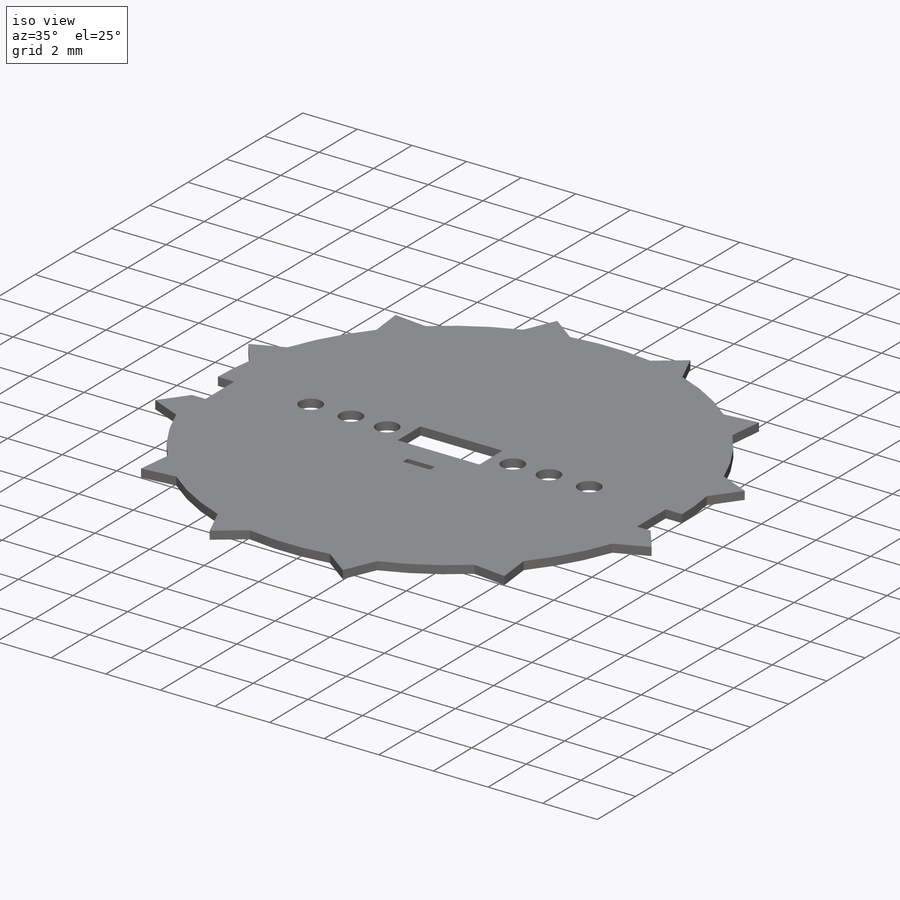
[diagram: iso view]
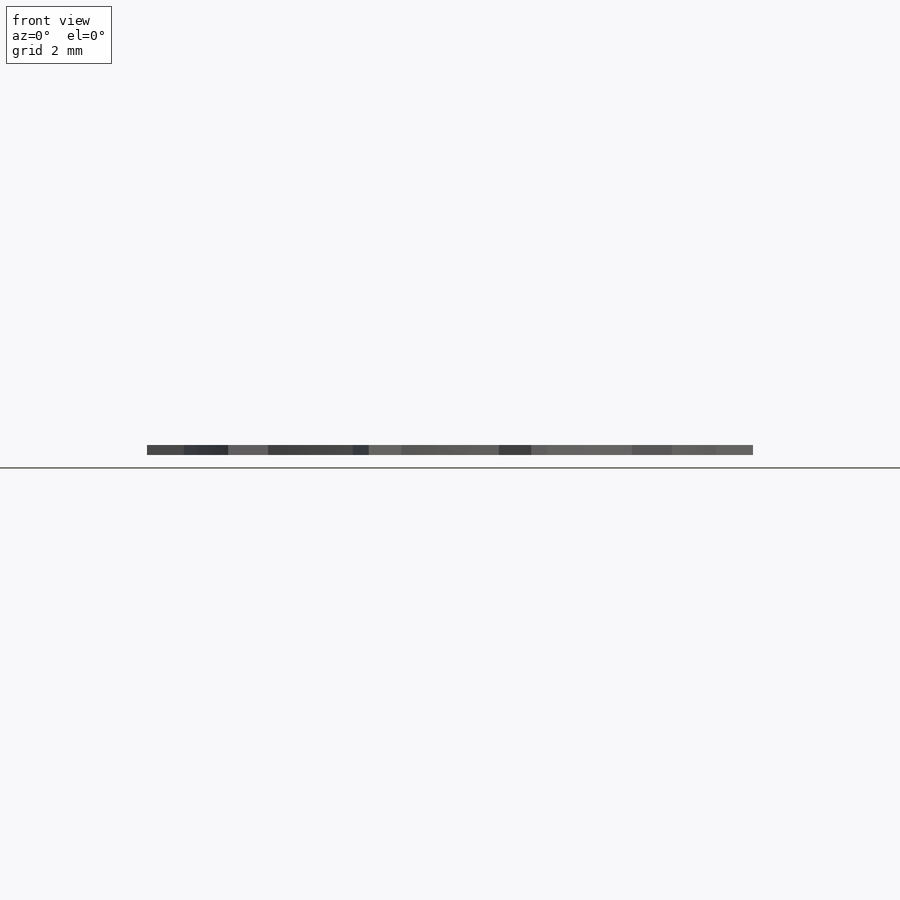
[diagram: front view]
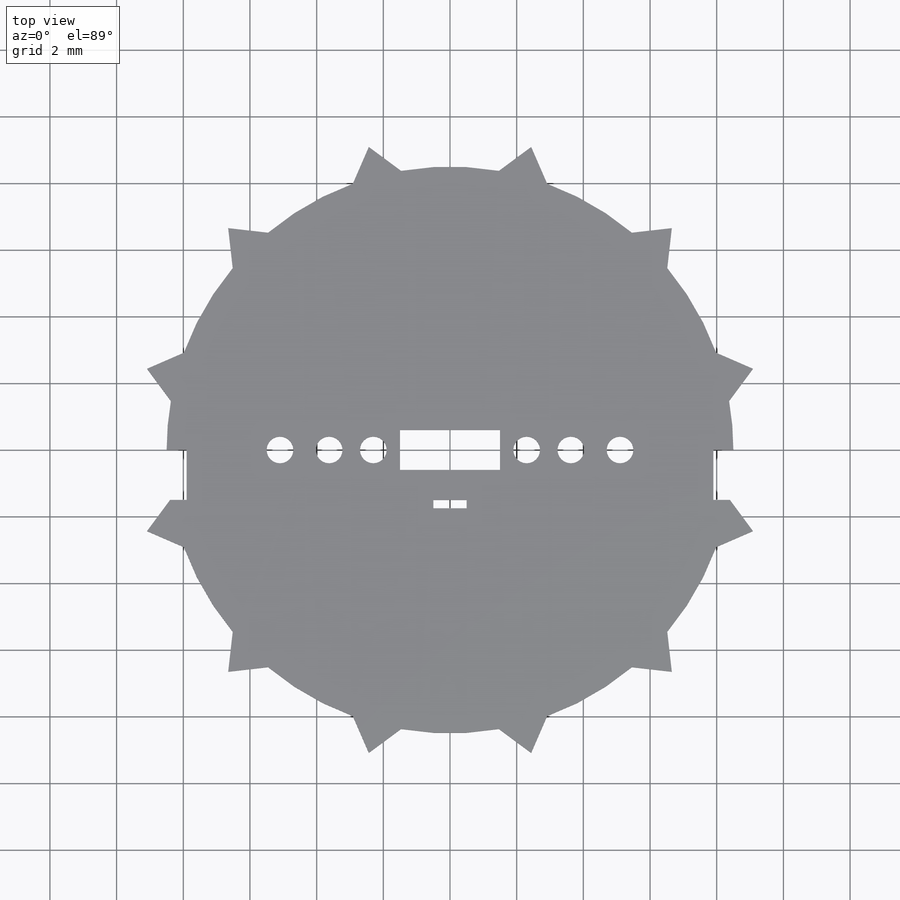
[diagram: top view]
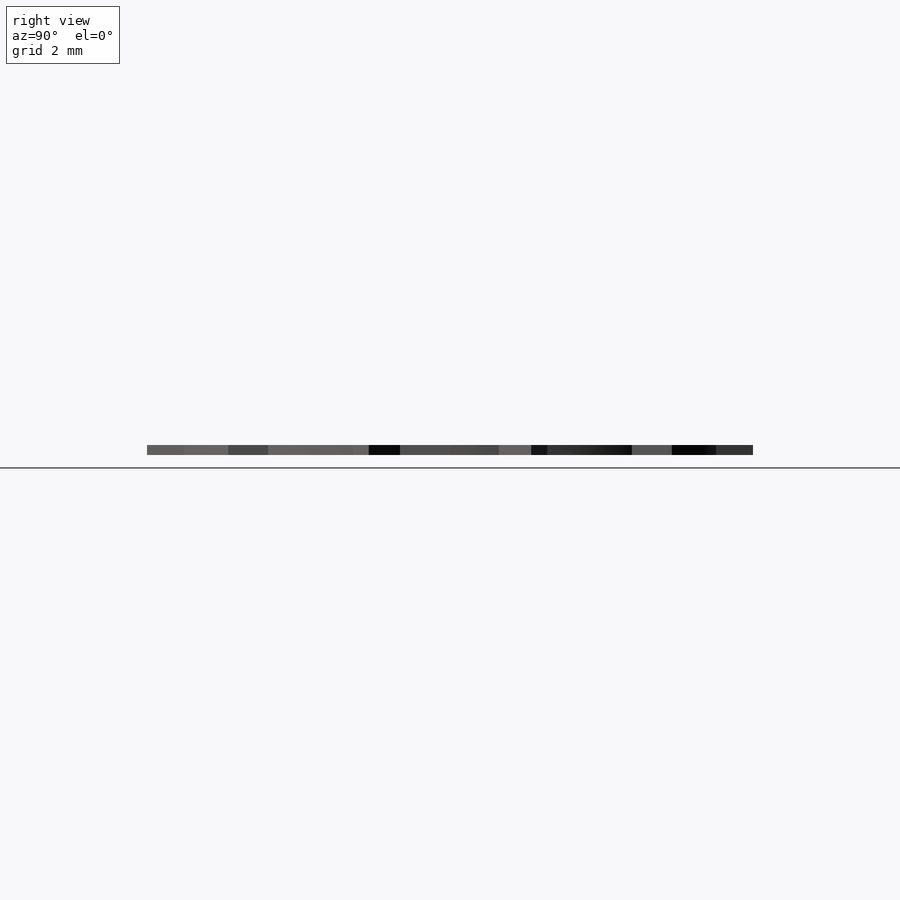
[diagram: right view]
SOLIDWORKS PART (.sldprt)
format: sldprt  version: not decoded by parser v0  size: 266,240 bytes
history: native  units: mm
features: sketch x4, cut_extrude x3, material x1, extrude x1 (+12 scaffold rows collapsed)
feature tree (21):
  scaffold x12  (default folders/planes/origin — collapsed)
  material  "Ceramic Porcelain"
  sketch  "Sketch1"  dims[c1.D1=17.0mm c1.D2=18.82mm c1.D3=110.0mm c2.D3=15.0deg c2.D4=1.5mm]
  extrude  "Extrude1"  Depth=0.3mm
  sketch  "Sketch3"  dims[D7=0.8mm D1=10.2mm D2=7.25mm D3=4.6mm D4=2.3mm D5=3.625mm D6=5.1mm D8=1.2mm D9=0.6mm D10=3.0mm D11=1.5mm]
  cut_extrude  "Extrude2"  [1 undecoded]
  sketch  "Sketch4"  dims[D1=1.0mm D2=0.5mm D3=0.25mm D4=1.5mm]
  cut_extrude  "Extrude3"  Depth=24mm
  sketch  "Sketch5"  dims[D1=15.8mm D2=7.9mm D3=1.5mm]
  cut_extrude  "Extrude5"  Depth=1mm
decode coverage: 7 of 8 modeling features carry decoded parameters
note: 1 parameter value undecoded
note: suppression state not decoded; provenance and decode notes live in map.json
